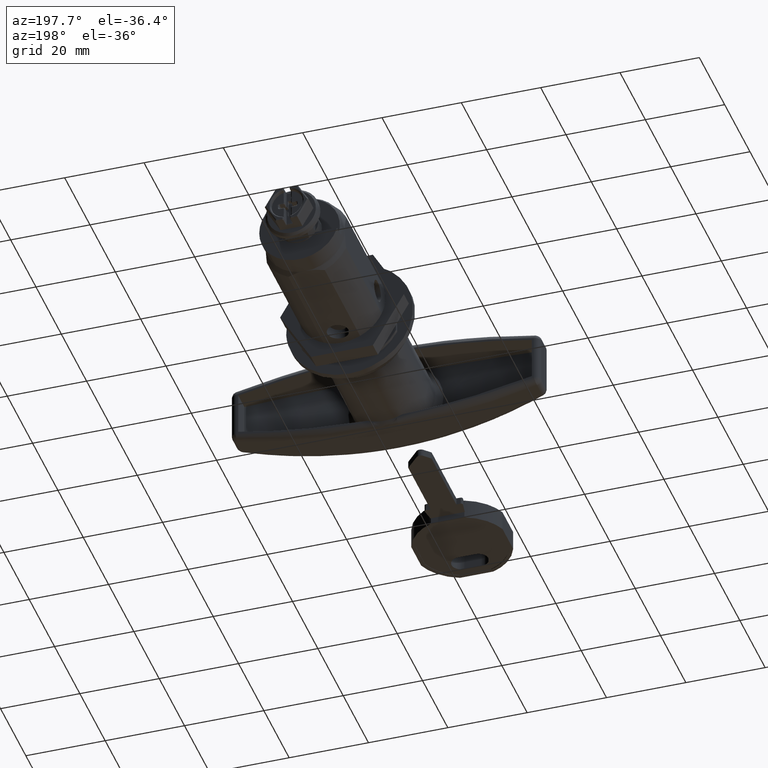
[diagram: clean part render]
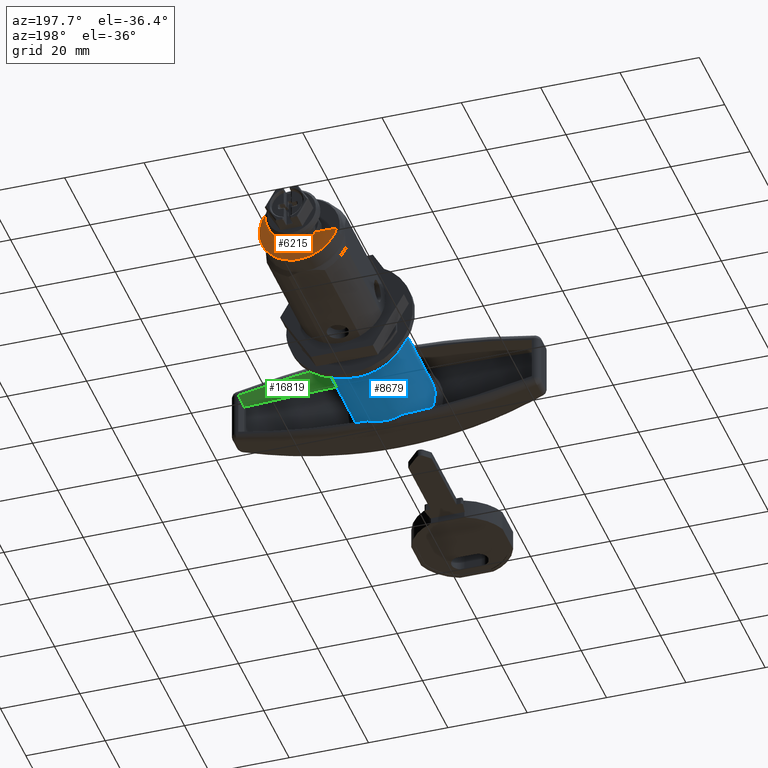
[diagram: same view with three faces highlighted in distinct colors, each labeled with its STEP entity id]
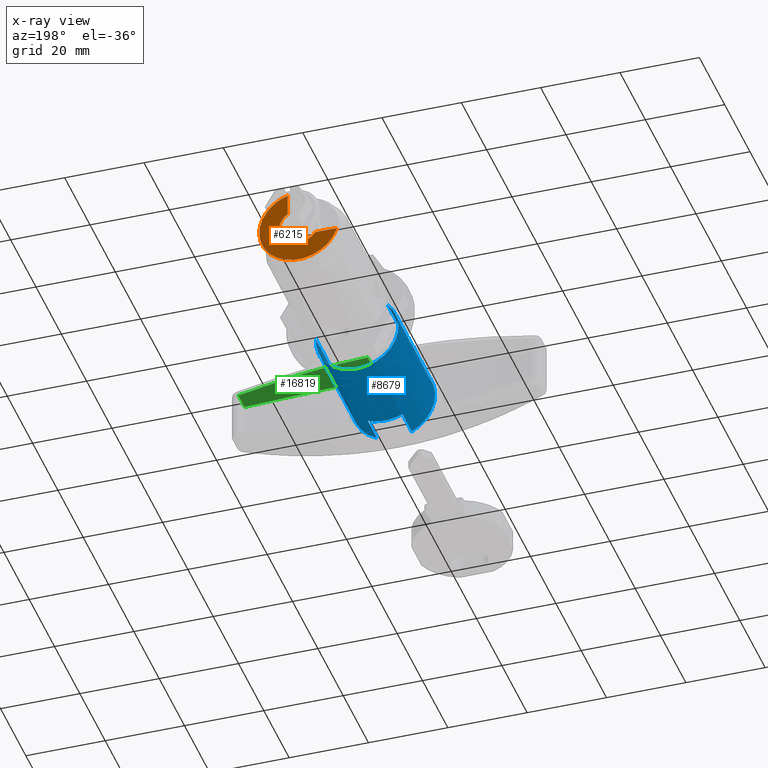
[diagram: x-ray of the same camera — body ghosted, the three highlighted faces saturated]
A machine part, auxiliary view with three faces highlighted in distinct colors.
The next image is the same camera in x-ray (body ghosted, the three faces saturated) — at least one of them is partly hidden behind the body in this view.
Their STEP definitions:

[orange] entity #6215 — the highlighted face is a freeform B-spline surface patch.
#3933=CARTESIAN_POINT('',(40.000001350386299,-2.800000132992865,9.600000455975540));
#3934=VERTEX_POINT('',#3933);
#3935=CARTESIAN_POINT('',(40.000001350386299,-5.754307693944071,8.178505515245842));
#3936=VERTEX_POINT('',#3935);
#3937=CARTESIAN_POINT('',(40.000001350386299,-2.800000132992862,9.600000455975540));
#3938=CARTESIAN_POINT('',(40.000001350386299,-4.395260948412258,9.134716051478216));
#3939=CARTESIAN_POINT('',(40.000001350386299,-5.754307693944071,8.178505515245842));
#3947=(BOUNDED_CURVE()B_SPLINE_CURVE(2,(#3937,#3938,#3939),.UNSPECIFIED.,.F.,.U.)B_SPLINE_CURVE_WITH_KNOTS((3,3),(0.0,0.082030175945618),.UNSPECIFIED.)CURVE()GEOMETRIC_REPRESENTATION_ITEM()RATIONAL_B_SPLINE_CURVE((1.0,0.943580413835011,0.914929479149381))REPRESENTATION_ITEM(''));
#3948=EDGE_CURVE('',#3934,#3936,#3947,.T.);
#3974=CARTESIAN_POINT('',(40.000001350386299,9.600000455975531,-2.800000132992895));
#3975=VERTEX_POINT('',#3974);
#3981=CARTESIAN_POINT('',(40.000001350386299,-7.459388683341343,-6.660144891091237));
#3982=VERTEX_POINT('',#3981);
#3983=CARTESIAN_POINT('',(40.000001350386292,-7.459388683341381,-6.660144891091271));
#3984=CARTESIAN_POINT('',(40.000001350386292,-4.847983324913307,-9.584929245907864));
#3985=CARTESIAN_POINT('',(40.000001350386299,-0.944570143682854,-9.955289887449466));
#3986=CARTESIAN_POINT('',(40.000001350386306,7.285290321272336,-10.736149166260899));
#3987=CARTESIAN_POINT('',(40.000001350386299,9.600000455975531,-2.800000132992896));
#3995=(BOUNDED_CURVE()B_SPLINE_CURVE(2,(#3983,#3984,#3985,#3986,#3987),.UNSPECIFIED.,.F.,.U.)B_SPLINE_CURVE_WITH_KNOTS((3,2,3),(0.486900953988101,0.666666666666667,1.0),.UNSPECIFIED.)CURVE()GEOMETRIC_REPRESENTATION_ITEM()RATIONAL_B_SPLINE_CURVE((0.886076316151020,0.876358827723316,1.0,0.770736457591769,1.0))REPRESENTATION_ITEM(''));
#3996=EDGE_CURVE('',#3982,#3975,#3995,.T.);
#4091=CARTESIAN_POINT('',(40.000001350386313,-5.754307693944071,8.178505515245842));
#4092=CARTESIAN_POINT('',(40.000001350386299,-10.503832575528801,4.836791369797548));
#4093=CARTESIAN_POINT('',(40.000001350386299,-9.955289887449467,-0.944570143682831));
#4094=CARTESIAN_POINT('',(40.000001350386299,-9.645277776778372,-4.211940440098975));
#4095=CARTESIAN_POINT('',(40.000001350386292,-7.459388683341381,-6.660144891091271));
#4103=(BOUNDED_CURVE()B_SPLINE_CURVE(2,(#4091,#4092,#4093,#4094,#4095),.UNSPECIFIED.,.F.,.U.)B_SPLINE_CURVE_WITH_KNOTS((3,2,3),(0.082030175945618,0.333333333333333,0.486900953988101),.UNSPECIFIED.)CURVE()GEOMETRIC_REPRESENTATION_ITEM()RATIONAL_B_SPLINE_CURVE((0.914929479149381,0.827156043756757,1.0,0.894377629868453,0.886076316151020))REPRESENTATION_ITEM(''));
#4104=EDGE_CURVE('',#3936,#3982,#4103,.T.);
#5001=CARTESIAN_POINT('',(40.000001350386299,-4.795479394035308,-1.415407143327581));
#5002=VERTEX_POINT('',#5001);
#5003=CARTESIAN_POINT('',(40.000001350385958,2.230677515242269,-4.474827127718969));
#5004=VERTEX_POINT('',#5003);
#5005=CARTESIAN_POINT('',(40.000001350386306,-4.795479394035308,-1.415407143327581));
#5006=CARTESIAN_POINT('',(40.000001350386285,-3.941586080944233,-4.308445945972665));
#5007=CARTESIAN_POINT('',(40.000001350386299,-0.984174489404091,-4.902183245698410));
#5008=CARTESIAN_POINT('',(40.000001350386292,0.696509759304420,-5.239601591651436));
#5009=CARTESIAN_POINT('',(40.000001350385958,2.230677515242269,-4.474827127718969));
#5017=(BOUNDED_CURVE()B_SPLINE_CURVE(2,(#5005,#5006,#5007,#5008,#5009),.UNSPECIFIED.,.F.,.U.)B_SPLINE_CURVE_WITH_KNOTS((3,2,3),(0.359729588893338,0.666666666666667,0.853543996178263),.UNSPECIFIED.)CURVE()GEOMETRIC_REPRESENTATION_ITEM()RATIONAL_B_SPLINE_CURVE((0.975566185982518,0.845724241948269,1.0,0.906069863301507,0.917460205244255))REPRESENTATION_ITEM(''));
#5018=EDGE_CURVE('',#5002,#5004,#5017,.T.);
#5087=CARTESIAN_POINT('',(40.000001350386299,4.142462945548190,-2.800000132992895));
#5088=VERTEX_POINT('',#5087);
#5089=CARTESIAN_POINT('',(40.000001350385958,2.230677515242269,-4.474827127718969));
#5090=CARTESIAN_POINT('',(40.000001350386292,3.406637988161878,-3.888617088565766));
#5091=CARTESIAN_POINT('',(40.000001350386299,4.142462945548187,-2.800000132992897));
#5099=(BOUNDED_CURVE()B_SPLINE_CURVE(2,(#5089,#5090,#5091),.UNSPECIFIED.,.F.,.U.)B_SPLINE_CURVE_WITH_KNOTS((3,3),(0.853543996178263,1.0),.UNSPECIFIED.)CURVE()GEOMETRIC_REPRESENTATION_ITEM()RATIONAL_B_SPLINE_CURVE((0.917460205244255,0.926386830894664,1.0))REPRESENTATION_ITEM(''));
#5100=EDGE_CURVE('',#5004,#5088,#5099,.T.);
#5126=CARTESIAN_POINT('',(40.000001350386299,-2.800000132992865,4.142462945548211));
#5127=VERTEX_POINT('',#5126);
#5133=CARTESIAN_POINT('',(40.000001350386299,-2.800000132992863,4.142462945548210));
#5134=CARTESIAN_POINT('',(40.000001350386285,-5.557257986435263,2.278759526153438));
#5135=CARTESIAN_POINT('',(40.000001350386299,-4.902183245698418,-0.984174489404049));
#5136=CARTESIAN_POINT('',(40.000001350386299,-4.858419279792680,-1.202163253325713));
#5137=CARTESIAN_POINT('',(40.000001350386299,-4.795479394035308,-1.415407143327581));
#5145=(BOUNDED_CURVE()B_SPLINE_CURVE(2,(#5133,#5134,#5135,#5136,#5137),.UNSPECIFIED.,.F.,.U.)B_SPLINE_CURVE_WITH_KNOTS((3,2,3),(0.0,0.333333333333333,0.359729588893338),.UNSPECIFIED.)CURVE()GEOMETRIC_REPRESENTATION_ITEM()RATIONAL_B_SPLINE_CURVE((1.0,0.832456694196171,1.0,0.986732452247902,0.975566185982518))REPRESENTATION_ITEM(''));
#5146=EDGE_CURVE('',#5127,#5002,#5145,.T.);
#6192=CARTESIAN_POINT('',(40.000001350386299,-10.979000070834170,-10.978533431406291));
#6193=CARTESIAN_POINT('',(40.000001350386299,10.579020018858699,-10.978533431406291));
#6194=CARTESIAN_POINT('',(40.000001350386299,-10.979000070834170,10.578997819097360));
#6195=CARTESIAN_POINT('',(40.000001350386299,10.579020018858699,10.578997819097360));
#6196=B_SPLINE_SURFACE_WITH_KNOTS('',1,1,((#6192,#6194),(#6193,#6195)),.UNSPECIFIED.,.F.,.F.,.U.,(2,2),(2,2),(0.0,21.558020089692860),(0.0,21.557531250503661),.UNSPECIFIED.);
#6197=ORIENTED_EDGE('',*,*,#3948,.T.);
#6198=ORIENTED_EDGE('',*,*,#4104,.T.);
#6199=ORIENTED_EDGE('',*,*,#3996,.T.);
#6200=CARTESIAN_POINT('',(40.000001350386299,4.142462945548190,-2.800000132992895));
#6201=CARTESIAN_POINT('',(40.000001350386299,9.600000455975531,-2.800000132992895));
#6202=QUASI_UNIFORM_CURVE('',1,(#6200,#6201),.UNSPECIFIED.,.F.,.U.);
#6203=EDGE_CURVE('',#5088,#3975,#6202,.T.);
#6204=ORIENTED_EDGE('',*,*,#6203,.F.);
#6205=ORIENTED_EDGE('',*,*,#5100,.F.);
#6206=ORIENTED_EDGE('',*,*,#5018,.F.);
#6207=ORIENTED_EDGE('',*,*,#5146,.F.);
#6208=CARTESIAN_POINT('',(40.000001350386299,-2.800000132992865,9.600000455975540));
#6209=CARTESIAN_POINT('',(40.000001350386299,-2.800000132992865,4.142462945548211));
#6210=QUASI_UNIFORM_CURVE('',1,(#6208,#6209),.UNSPECIFIED.,.F.,.U.);
#6211=EDGE_CURVE('',#3934,#5127,#6210,.T.);
#6212=ORIENTED_EDGE('',*,*,#6211,.F.);
#6213=EDGE_LOOP('',(#6197,#6198,#6199,#6204,#6205,#6206,#6207,#6212));
#6214=FACE_OUTER_BOUND('',#6213,.T.);
#6215=ADVANCED_FACE('',(#6214),#6196,.T.);

[blue] entity #8679 — the highlighted face is a freeform B-spline surface patch.
#8454=CARTESIAN_POINT('',(-4.964502213879515,7.620510130271885,7.077335095489270));
#8455=CARTESIAN_POINT('',(-4.964502213879516,10.690341663982792,3.771870579359414));
#8456=CARTESIAN_POINT('',(-4.964502213879515,10.374473956017400,-0.728150409905427));
#8457=CARTESIAN_POINT('',(-4.964502213879516,9.646263728187046,-11.102624365922823));
#8458=CARTESIAN_POINT('',(-4.964502213879515,-0.728210227830348,-10.374414138092471));
#8459=CARTESIAN_POINT('',(-4.964502213879516,-11.102684183847744,-9.646203910262125));
#8460=CARTESIAN_POINT('',(-4.964502213879515,-10.374473956017400,0.728270045755269));
#8461=CARTESIAN_POINT('',(-35.873884104739005,7.620510130271885,7.077335095489270));
#8462=CARTESIAN_POINT('',(-35.873884104739005,10.690341663982792,3.771870579359414));
#8463=CARTESIAN_POINT('',(-35.873884104738998,10.374473956017400,-0.728150409905427));
#8464=CARTESIAN_POINT('',(-35.873884104739005,9.646263728187046,-11.102624365922823));
#8465=CARTESIAN_POINT('',(-35.873884104738998,-0.728210227830348,-10.374414138092471));
#8466=CARTESIAN_POINT('',(-35.873884104739005,-11.102684183847744,-9.646203910262125));
#8467=CARTESIAN_POINT('',(-35.873884104738998,-10.374473956017400,0.728270045755269));
#8475=(BOUNDED_SURFACE()B_SPLINE_SURFACE(2,1,((#8454,#8461),(#8455,#8462),(#8456,#8463),(#8457,#8464),(#8458,#8465),(#8459,#8466),(#8460,#8467)),.UNSPECIFIED.,.F.,.F.,.U.)B_SPLINE_SURFACE_WITH_KNOTS((3,2,2,3),(2,2),(0.0,8.960267781254787,26.191551975975539,43.422836170696293),(0.0,30.909381890859489),.UNSPECIFIED.)GEOMETRIC_REPRESENTATION_ITEM()RATIONAL_B_SPLINE_SURFACE(((0.853787705168324,0.853787705168324),(0.847695526217005,0.847695526217005),(1.0,1.0),(0.707106781186548,0.707106781186548),(1.0,1.0),(0.707106781186548,0.707106781186548),(1.0,1.0)))REPRESENTATION_ITEM('')SURFACE());
#8476=CARTESIAN_POINT('',(-35.119996741547247,4.355676426082066,-9.443884425412870));
#8477=VERTEX_POINT('',#8476);
#8478=CARTESIAN_POINT('',(-34.967141554458408,7.620512398210590,7.077334314096355));
#8479=VERTEX_POINT('',#8478);
#8480=CARTESIAN_POINT('',(-35.119996741547247,4.355676426082066,-9.443884425412870));
#8481=CARTESIAN_POINT('',(-35.112302371480261,4.581716226958906,-9.339631776877651));
#8482=CARTESIAN_POINT('',(-35.104127705387029,4.804152619941596,-9.227147322800761));
#8483=CARTESIAN_POINT('',(-35.087118768702382,5.237567014152962,-8.988217317620523));
#8484=CARTESIAN_POINT('',(-35.078270804263731,5.448993212929455,-8.861592070175355));
#8485=CARTESIAN_POINT('',(-35.050915517639233,6.067757498585454,-8.460668471235401));
#8486=CARTESIAN_POINT('',(-35.031596121186809,6.459658009394113,-8.165426670107188));
#8487=CARTESIAN_POINT('',(-35.001851780911480,7.016478243389820,-7.680410274747853));
#8488=CARTESIAN_POINT('',(-34.991809434941743,7.196894147083551,-7.511686571564137));
#8489=CARTESIAN_POINT('',(-34.976665504316962,7.459535310277309,-7.247749339087534));
#8490=CARTESIAN_POINT('',(-34.971599839229349,7.545817278282658,-7.157874094579046));
#8491=CARTESIAN_POINT('',(-34.961541695328052,7.714339958780356,-6.975922920990938));
#8492=CARTESIAN_POINT('',(-34.956539527988248,7.796751872031948,-6.883681510332417));
#8493=CARTESIAN_POINT('',(-34.931708734972631,8.199693005335750,-6.416231280521919));
#8494=CARTESIAN_POINT('',(-34.912421695165172,8.493005339034269,-6.022387509963947));
#8495=CARTESIAN_POINT('',(-34.885202313559184,8.890165946882098,-5.402273083820528));
#8496=CARTESIAN_POINT('',(-34.876414061802642,9.015390937681238,-5.190658208732399));
#8497=CARTESIAN_POINT('',(-34.863765308885803,9.192333020749430,-4.865761647087547));
#8498=CARTESIAN_POINT('',(-34.859638019567129,9.249496085966822,-4.756215901943533));
#8499=CARTESIAN_POINT('',(-34.851579535071266,9.360139866635514,-4.534597605948540));
#8500=CARTESIAN_POINT('',(-34.847643849353318,9.413681094374024,-4.422391343728680));
#8501=CARTESIAN_POINT('',(-34.828551880470172,9.671355397137198,-3.856413469731844));
#8502=CARTESIAN_POINT('',(-34.815366610417023,9.842758628506029,-3.394229827971617));
#8503=CARTESIAN_POINT('',(-34.793796542727002,10.118776107756410,-2.451769734802412));
#8504=CARTESIAN_POINT('',(-34.785409689279369,10.223384157575451,-1.971491656599952));
#8505=CARTESIAN_POINT('',(-34.778308052398572,10.311481860791011,-1.359580444485512));
#8506=CARTESIAN_POINT('',(-34.777056884117997,10.326958105592020,-1.236617278172645));
#8507=CARTESIAN_POINT('',(-34.774902854708579,10.353558923525810,-0.989511357007342));
#8508=CARTESIAN_POINT('',(-34.774000839896203,10.364673038094249,-0.865350132190825));
#8509=CARTESIAN_POINT('',(-34.771844675845507,10.391214413908950,-0.494121828152374));
#8510=CARTESIAN_POINT('',(-34.771130516006593,10.399971496886460,-0.247298116916402));
#8511=CARTESIAN_POINT('',(-34.771123694037271,10.400055270417250,0.491233657469138));
#8512=CARTESIAN_POINT('',(-34.773966786259770,10.365322797716720,0.981011801457766));
#8513=CARTESIAN_POINT('',(-34.782368980352963,10.261111571788581,1.711820395742545));
#8514=CARTESIAN_POINT('',(-34.785859309598337,10.217656952241590,1.954777793236323));
#8515=CARTESIAN_POINT('',(-34.792111937900962,10.139105540142211,2.318224220177596));
#8516=CARTESIAN_POINT('',(-34.794369070104182,10.110648096681940,2.439374680514361));
#8517=CARTESIAN_POINT('',(-34.799203016128423,10.049403349856309,2.680536223993761));
#8518=CARTESIAN_POINT('',(-34.801775185755069,10.016675066597770,2.800343209008384));
#8519=CARTESIAN_POINT('',(-34.815380173322517,9.842600475522003,3.395545299156935));
#8520=CARTESIAN_POINT('',(-34.828645264898931,9.670114298164904,3.859500239593222));
#8521=CARTESIAN_POINT('',(-34.847701647696397,9.412896416889874,4.424171282055503));
#8522=CARTESIAN_POINT('',(-34.851640742452354,9.359306179700113,4.536449878235643));
#8523=CARTESIAN_POINT('',(-34.859735456637587,9.248151917726103,4.758960179119401));
#8524=CARTESIAN_POINT('',(-34.863879548292573,9.190746794793391,4.868884685171184));
#8525=CARTESIAN_POINT('',(-34.876573717741920,9.013134080353218,5.194730448133698));
#8526=CARTESIAN_POINT('',(-34.885385546105347,8.887536122555771,5.406729019691037));
#8527=CARTESIAN_POINT('',(-34.912648984308177,8.489601048599207,6.027349185318107));
#8528=CARTESIAN_POINT('',(-34.931929174131973,8.196227702694126,6.420671350232881));
#8529=CARTESIAN_POINT('',(-34.956843064657200,7.791797503439606,6.889467633569869));
#8530=CARTESIAN_POINT('',(-34.961979699938581,7.707107441778677,6.984092537276788));
#8531=CARTESIAN_POINT('',(-34.967141554458408,7.620512398210590,7.077334314096355));
#8532=B_SPLINE_CURVE_WITH_KNOTS('',3,(#8480,#8481,#8482,#8483,#8484,#8485,#8486,#8487,#8488,#8489,#8490,#8491,#8492,#8493,#8494,#8495,#8496,#8497,#8498,#8499,#8500,#8501,#8502,#8503,#8504,#8505,#8506,#8507,#8508,#8509,#8510,#8511,#8512,#8513,#8514,#8515,#8516,#8517,#8518,#8519,#8520,#8521,#8522,#8523,#8524,#8525,#8526,#8527,#8528,#8529,#8530,#8531),.UNSPECIFIED.,.F.,.U.,(4,2,2,2,2,2,2,2,2,2,2,2,2,2,2,2,2,2,2,2,2,2,2,2,2,4),(0.0,0.031250000000000,0.062500000000000,0.125000000000000,0.156250000000000,0.171875000000000,0.187500000000000,0.250000000000000,0.281250000000000,0.296874999999999,0.312499999999999,0.374999999999999,0.437499999999999,0.453124999999999,0.468749999999999,0.499999999999999,0.562499999999999,0.593749999999999,0.609374999999999,0.624999999999999,0.687499999999999,0.703124999999999,0.718749999999999,0.749999999999999,0.812499999999999,0.828592481241945),.UNSPECIFIED.);
#8533=EDGE_CURVE('',#8477,#8479,#8532,.T.);
#8534=ORIENTED_EDGE('',*,*,#8533,.T.);
#8535=CARTESIAN_POINT('',(-5.700002080408000,7.620511944012234,7.077333142529513));
#8536=VERTEX_POINT('',#8535);
#8537=CARTESIAN_POINT('',(-5.700002080408000,7.620511944012234,7.077333142529513));
#8538=CARTESIAN_POINT('',(-34.967141554458408,7.620512398210590,7.077334314096355));
#8539=QUASI_UNIFORM_CURVE('',1,(#8537,#8538),.UNSPECIFIED.,.F.,.U.);
#8540=EDGE_CURVE('',#8536,#8479,#8539,.T.);
#8541=ORIENTED_EDGE('',*,*,#8540,.F.);
#8542=CARTESIAN_POINT('',(-5.700002080408000,0.0,-10.399940182075079));
#8543=VERTEX_POINT('',#8542);
#8544=CARTESIAN_POINT('',(-5.700002080408000,7.620511944012234,7.077333142529513));
#8545=CARTESIAN_POINT('',(-5.700002080408001,10.400000000000000,4.084496642170961));
#8546=CARTESIAN_POINT('',(-5.700002080408000,10.400000000000000,0.000059817924921));
#8547=CARTESIAN_POINT('',(-5.700002080407999,10.400000000000000,-10.399940182075079));
#8548=CARTESIAN_POINT('',(-5.700002080408000,0.0,-10.399940182075079));
#8556=(BOUNDED_CURVE()B_SPLINE_CURVE(2,(#8544,#8545,#8546,#8547,#8548),.UNSPECIFIED.,.F.,.U.)B_SPLINE_CURVE_WITH_KNOTS((3,2,3),(0.130575017007077,0.250000000000000,0.500000000000000),.UNSPECIFIED.)CURVE()GEOMETRIC_REPRESENTATION_ITEM()RATIONAL_B_SPLINE_CURVE((0.853844698108157,0.860084929297844,1.0,0.707106781186548,1.0))REPRESENTATION_ITEM(''));
#8557=EDGE_CURVE('',#8536,#8543,#8556,.T.);
#8558=ORIENTED_EDGE('',*,*,#8557,.T.);
#8559=CARTESIAN_POINT('',(-5.700002080408000,-10.374473956011929,0.728270045833199));
#8560=VERTEX_POINT('',#8559);
#8561=CARTESIAN_POINT('',(-5.700002080408000,0.0,-10.399940182075079));
#8562=CARTESIAN_POINT('',(-5.700002080407999,-10.400000000000000,-10.399940182075079));
#8563=CARTESIAN_POINT('',(-5.700002080408000,-10.400000000000000,0.000059817924921));
#8564=CARTESIAN_POINT('',(-5.700002080407999,-10.400000000000007,0.364612315720743));
#8565=CARTESIAN_POINT('',(-5.700002080408000,-10.374473956011924,0.728270045833199));
#8573=(BOUNDED_CURVE()B_SPLINE_CURVE(2,(#8561,#8562,#8563,#8564,#8565),.UNSPECIFIED.,.F.,.U.)B_SPLINE_CURVE_WITH_KNOTS((3,2,3),(0.500000000000000,0.750000000000000,0.762215784287834),.UNSPECIFIED.)CURVE()GEOMETRIC_REPRESENTATION_ITEM()RATIONAL_B_SPLINE_CURVE((1.0,0.707106781186548,1.0,0.985688318478422,0.972775264270955))REPRESENTATION_ITEM(''));
#8574=EDGE_CURVE('',#8543,#8560,#8573,.T.);
#8575=ORIENTED_EDGE('',*,*,#8574,.T.);
#8576=CARTESIAN_POINT('',(-34.773207020145513,-10.374474258814910,0.728265813043037));
#8577=VERTEX_POINT('',#8576);
#8578=CARTESIAN_POINT('',(-5.700002080408000,-10.374473956011929,0.728270045833199));
#8579=CARTESIAN_POINT('',(-34.773207020145513,-10.374474258814910,0.728265813043037));
#8580=QUASI_UNIFORM_CURVE('',1,(#8578,#8579),.UNSPECIFIED.,.F.,.U.);
#8581=EDGE_CURVE('',#8560,#8577,#8580,.T.);
#8582=ORIENTED_EDGE('',*,*,#8581,.T.);
#8583=CARTESIAN_POINT('',(-35.119996741547297,-4.355676426082095,-9.443884425412850));
#8584=VERTEX_POINT('',#8583);
#8585=CARTESIAN_POINT('',(-34.773207020145513,-10.374474258814910,0.728265813043037));
#8586=CARTESIAN_POINT('',(-34.771821345356429,-10.391529575022080,0.485290951671562));
#8587=CARTESIAN_POINT('',(-34.771132763714043,-10.399972498664580,0.242953865162199));
#8588=CARTESIAN_POINT('',(-34.771125849383871,-10.400055801448490,-0.491114535014885));
#8589=CARTESIAN_POINT('',(-34.773968848857777,-10.365323352141610,-0.980892700184830));
#8590=CARTESIAN_POINT('',(-34.782370899114618,-10.261112160630651,-1.711701325575499));
#8591=CARTESIAN_POINT('',(-34.785861179626082,-10.217657552443420,-1.954658733326483));
#8592=CARTESIAN_POINT('',(-34.792113733618777,-10.139106157210970,-2.318105175482712));
#8593=CARTESIAN_POINT('',(-34.794370840815510,-10.110648719351859,-2.439255640869538));
#8594=CARTESIAN_POINT('',(-34.799204736584258,-10.049403983633001,-2.680417194357764));
#8595=CARTESIAN_POINT('',(-34.801776881005232,-10.016675705870719,-2.800224184322749));
#8596=CARTESIAN_POINT('',(-34.815381742158031,-9.842601141993281,-3.395426298955382));
#8597=CARTESIAN_POINT('',(-34.828646731372821,-9.670114985493679,-3.859381258126268));
#8598=CARTESIAN_POINT('',(-34.847702984678563,-9.412897129162881,-4.424052322939832));
#8599=CARTESIAN_POINT('',(-34.851642053432649,-9.359306896910193,-4.536330923540998));
#8600=CARTESIAN_POINT('',(-34.859736715574307,-9.248152644674162,-4.758841233139073));
#8601=CARTESIAN_POINT('',(-34.863880781260043,-9.190747526528973,-4.868765743472169));
#8602=CARTESIAN_POINT('',(-34.876574872956432,-9.013134826210814,-5.194611519054749));
#8603=CARTESIAN_POINT('',(-34.885386649690943,-8.887536877507671,-5.406610098727248));
#8604=CARTESIAN_POINT('',(-34.912649933613316,-8.489601829892477,-6.027230287823401));
#8605=CARTESIAN_POINT('',(-34.931930021388951,-8.196228500297583,-6.420552467220005));
#8606=CARTESIAN_POINT('',(-34.961648707767431,-7.713799026048998,-6.979761852618045));
#8607=CARTESIAN_POINT('',(-34.971688065798453,-7.545901545819801,-7.161017082673712));
#8608=CARTESIAN_POINT('',(-34.986836027286387,-7.283144237521714,-7.424980462984200));
#8609=CARTESIAN_POINT('',(-34.991902120377432,-7.193693606903507,-7.511673649661513));
#8610=CARTESIAN_POINT('',(-35.001962272662162,-7.012599561689710,-7.681008778572703));
#8611=CARTESIAN_POINT('',(-35.006966600166258,-6.920780706310654,-7.763832177334746));
#8612=CARTESIAN_POINT('',(-35.031813974566738,-6.455414432334390,-8.168857854715203));
#8613=CARTESIAN_POINT('',(-35.051132626391407,-6.063145994427183,-8.463924126749987));
#8614=CARTESIAN_POINT('',(-35.087527615674617,-5.239317741423242,-8.997179378510056));
#8615=CARTESIAN_POINT('',(-35.104607839286892,-4.807763230495281,-9.235375800006446));
#8616=CARTESIAN_POINT('',(-35.119996741547297,-4.355676426082095,-9.443884425412850));
#8617=B_SPLINE_CURVE_WITH_KNOTS('',3,(#8585,#8586,#8587,#8588,#8589,#8590,#8591,#8592,#8593,#8594,#8595,#8596,#8597,#8598,#8599,#8600,#8601,#8602,#8603,#8604,#8605,#8606,#8607,#8608,#8609,#8610,#8611,#8612,#8613,#8614,#8615,#8616),.UNSPECIFIED.,.F.,.U.,(4,2,2,2,2,2,2,2,2,2,2,2,2,2,2,4),(0.469316589508179,0.499999999999999,0.562499999999999,0.593749999999999,0.609374999999999,0.624999999999999,0.687500000000000,0.703125000000000,0.718750000000000,0.750000000000000,0.812500000000000,0.843750000000000,0.859375000000000,0.875000000000000,0.937500000000000,1.0),.UNSPECIFIED.);
#8618=EDGE_CURVE('',#8577,#8584,#8617,.T.);
#8619=ORIENTED_EDGE('',*,*,#8618,.T.);
#8620=CARTESIAN_POINT('',(-27.700002080408002,-4.355676426082045,-9.443884425412749));
#8621=VERTEX_POINT('',#8620);
#8622=CARTESIAN_POINT('',(-35.119996741547297,-4.355676426082095,-9.443884425412850));
#8623=CARTESIAN_POINT('',(-27.700002080408002,-4.355676426082045,-9.443884425412749));
#8624=QUASI_UNIFORM_CURVE('',1,(#8622,#8623),.UNSPECIFIED.,.F.,.U.);
#8625=EDGE_CURVE('',#8584,#8621,#8624,.T.);
#8626=ORIENTED_EDGE('',*,*,#8625,.T.);
#8627=CARTESIAN_POINT('',(-27.700002080408002,-2.956395875626015,-9.970884140727211));
#8628=VERTEX_POINT('',#8627);
#8629=CARTESIAN_POINT('',(-27.700002080408002,-2.956395875626015,-9.970884140727213));
#8630=CARTESIAN_POINT('',(-27.700002080408005,-3.675027258195580,-9.757809143582080));
#8631=CARTESIAN_POINT('',(-27.700002080408002,-4.355676426082045,-9.443884425412749));
#8639=(BOUNDED_CURVE()B_SPLINE_CURVE(2,(#8629,#8630,#8631),.UNSPECIFIED.,.F.,.U.)CURVE()GEOMETRIC_REPRESENTATION_ITEM()QUASI_UNIFORM_CURVE()RATIONAL_B_SPLINE_CURVE((1.0,0.997412848359685,1.0))REPRESENTATION_ITEM(''));
#8640=EDGE_CURVE('',#8628,#8621,#8639,.T.);
#8641=ORIENTED_EDGE('',*,*,#8640,.F.);
#8642=CARTESIAN_POINT('',(-27.700002080408002,2.956395875625975,-9.970884140727231));
#8643=VERTEX_POINT('',#8642);
#8644=CARTESIAN_POINT('',(-27.700002080408002,2.956395875625973,-9.970884140727225));
#8645=CARTESIAN_POINT('',(-27.700002080407994,-2.081668E-014,-10.847458776956536));
#8646=CARTESIAN_POINT('',(-27.700002080408002,-2.956395875626013,-9.970884140727215));
#8654=(BOUNDED_CURVE()B_SPLINE_CURVE(2,(#8644,#8645,#8646),.UNSPECIFIED.,.F.,.U.)CURVE()GEOMETRIC_REPRESENTATION_ITEM()QUASI_UNIFORM_CURVE()RATIONAL_B_SPLINE_CURVE((1.0,0.958744611408860,1.0))REPRESENTATION_ITEM(''));
#8655=EDGE_CURVE('',#8643,#8628,#8654,.T.);
#8656=ORIENTED_EDGE('',*,*,#8655,.F.);
#8657=CARTESIAN_POINT('',(-27.700002080408002,4.355676426082066,-9.443884425412749));
#8658=VERTEX_POINT('',#8657);
#8659=CARTESIAN_POINT('',(-27.700002080408002,4.355676426082066,-9.443884425412749));
#8660=CARTESIAN_POINT('',(-27.700002080408002,3.675027258195563,-9.757809143582090));
#8661=CARTESIAN_POINT('',(-27.700002080408002,2.956395875625973,-9.970884140727225));
#8669=(BOUNDED_CURVE()B_SPLINE_CURVE(2,(#8659,#8660,#8661),.UNSPECIFIED.,.F.,.U.)CURVE()GEOMETRIC_REPRESENTATION_ITEM()QUASI_UNIFORM_CURVE()RATIONAL_B_SPLINE_CURVE((1.0,0.997412848359685,1.0))REPRESENTATION_ITEM(''));
#8670=EDGE_CURVE('',#8658,#8643,#8669,.T.);
#8671=ORIENTED_EDGE('',*,*,#8670,.F.);
#8672=CARTESIAN_POINT('',(-27.700002080408002,4.355676426082066,-9.443884425412749));
#8673=CARTESIAN_POINT('',(-35.119996741547247,4.355676426082066,-9.443884425412870));
#8674=QUASI_UNIFORM_CURVE('',1,(#8672,#8673),.UNSPECIFIED.,.F.,.U.);
#8675=EDGE_CURVE('',#8658,#8477,#8674,.T.);
#8676=ORIENTED_EDGE('',*,*,#8675,.T.);
#8677=EDGE_LOOP('',(#8534,#8541,#8558,#8575,#8582,#8619,#8626,#8641,#8656,#8671,#8676));
#8678=FACE_OUTER_BOUND('',#8677,.T.);
#8679=ADVANCED_FACE('',(#8678),#8475,.T.);

[green] entity #16819 — the highlighted face is a freeform B-spline surface patch.
#8752=CARTESIAN_POINT('',(-27.700002080408002,-4.355676426082045,9.444004061262580));
#8753=VERTEX_POINT('',#8752);
#8767=CARTESIAN_POINT('',(-35.119996741547247,-4.355676426082095,9.444004061262701));
#8768=VERTEX_POINT('',#8767);
#8769=CARTESIAN_POINT('',(-27.700002080408002,-4.355676426082045,9.444004061262580));
#8770=CARTESIAN_POINT('',(-35.119996741547247,-4.355676426082095,9.444004061262701));
#8771=QUASI_UNIFORM_CURVE('',1,(#8769,#8770),.UNSPECIFIED.,.F.,.U.);
#8772=EDGE_CURVE('',#8753,#8768,#8771,.T.);
#12989=CARTESIAN_POINT('',(-36.530158068279299,-7.444765618155731,9.336245392833389));
#12990=VERTEX_POINT('',#12989);
#12991=CARTESIAN_POINT('',(-36.530158068279299,-7.444765618155740,9.336245392833400));
#12992=CARTESIAN_POINT('',(-36.536880639939852,-7.292213101118514,9.342962190417868));
#12993=CARTESIAN_POINT('',(-36.535547998973932,-7.140602627313280,9.349430766838337));
#12994=CARTESIAN_POINT('',(-36.518700480489493,-6.839038872263532,9.361895619899245));
#12995=CARTESIAN_POINT('',(-36.503175680946342,-6.689086758893330,9.367891780633984));
#12996=CARTESIAN_POINT('',(-36.458598339610496,-6.390763018119389,9.379427809726613));
#12997=CARTESIAN_POINT('',(-36.429554631825013,-6.242390345872751,9.384967654041182));
#12998=CARTESIAN_POINT('',(-36.375436262824472,-6.021065102415172,9.392942941583724));
#12999=CARTESIAN_POINT('',(-36.355581617948523,-5.947346540094419,9.395550752998913));
#13000=CARTESIAN_POINT('',(-36.312354548105318,-5.801173888643560,9.400627112190456));
#13001=CARTESIAN_POINT('',(-36.289007082415502,-5.728768569020093,9.403094201118188));
#13002=CARTESIAN_POINT('',(-36.213437693536832,-5.513723910819113,9.410285967161277));
#13003=CARTESIAN_POINT('',(-36.155836765797332,-5.373197597690373,9.414802538098835));
#13004=CARTESIAN_POINT('',(-36.055406970575682,-5.167922866555539,9.421156479833339));
#13005=CARTESIAN_POINT('',(-36.019454128427199,-5.100259492732587,9.423208900908179));
#13006=CARTESIAN_POINT('',(-35.942513589142933,-4.968689711054847,9.427124280110007));
#13007=CARTESIAN_POINT('',(-35.901497305394933,-4.904657587187876,9.428991245697153));
#13008=CARTESIAN_POINT('',(-35.812905219755983,-4.781110200346940,9.432527852555772));
#13009=CARTESIAN_POINT('',(-35.765307593949572,-4.721501577806547,9.434199959867573));
#13010=CARTESIAN_POINT('',(-35.661013839318542,-4.608995287777971,9.437302289418266));
#13011=CARTESIAN_POINT('',(-35.605216292429361,-4.556996119760070,9.438707674838955));
#13012=CARTESIAN_POINT('',(-35.513433155837014,-4.488421776265814,9.440536141571283));
#13013=CARTESIAN_POINT('',(-35.481247628865667,-4.467038222205609,9.441101586954838));
#13014=CARTESIAN_POINT('',(-35.414762885080279,-4.429126252134464,9.442098300815124));
#13015=CARTESIAN_POINT('',(-35.380468280827948,-4.412557154707801,9.442530731637151));
#13016=CARTESIAN_POINT('',(-35.309379877491942,-4.385088295954142,9.443244890955482));
#13017=CARTESIAN_POINT('',(-35.272243679819518,-4.374132267497554,9.443528092037749));
#13018=CARTESIAN_POINT('',(-35.196800058839010,-4.359445247024765,9.443907155377557));
#13019=CARTESIAN_POINT('',(-35.158633074171533,-4.355676426095592,9.444004061263058));
#13020=CARTESIAN_POINT('',(-35.119996741547247,-4.355676426082095,9.444004061262701));
#13021=B_SPLINE_CURVE_WITH_KNOTS('',3,(#12991,#12992,#12993,#12994,#12995,#12996,#12997,#12998,#12999,#13000,#13001,#13002,#13003,#13004,#13005,#13006,#13007,#13008,#13009,#13010,#13011,#13012,#13013,#13014,#13015,#13016,#13017,#13018,#13019,#13020),.UNSPECIFIED.,.F.,.U.,(4,2,2,2,2,2,2,2,2,2,2,2,2,2,4),(0.0,0.125000000000003,0.250000000000005,0.375000000000007,0.437500000000008,0.500000000000009,0.625000000000009,0.687500000000007,0.750000000000006,0.812500000000004,0.875000000000003,0.906250000000002,0.937500000000001,0.968750000000001,1.0),.UNSPECIFIED.);
#13022=EDGE_CURVE('',#12990,#8768,#13021,.T.);
#16469=CARTESIAN_POINT('',(-32.596689993963302,-37.000001852400800,5.406236238740561));
#16470=VERTEX_POINT('',#16469);
#16476=CARTESIAN_POINT('',(-27.700002080408002,-37.000001852400800,5.406236238740580));
#16477=VERTEX_POINT('',#16476);
#16478=CARTESIAN_POINT('',(-32.596689993963302,-37.000001852400800,5.406236238740561));
#16479=CARTESIAN_POINT('',(-27.700002080408002,-37.000001852400800,5.406236238740580));
#16480=QUASI_UNIFORM_CURVE('',1,(#16478,#16479),.UNSPECIFIED.,.F.,.U.);
#16481=EDGE_CURVE('',#16470,#16477,#16480,.T.);
#16715=CARTESIAN_POINT('',(-27.700002080408002,-37.000001852400800,5.406236238740580));
#16716=CARTESIAN_POINT('',(-27.700002080408005,-20.874953171307649,9.018736943163130));
#16717=CARTESIAN_POINT('',(-27.700002080408002,-4.355676426082045,9.444004061262580));
#16725=(BOUNDED_CURVE()B_SPLINE_CURVE(2,(#16715,#16716,#16717),.UNSPECIFIED.,.F.,.U.)CURVE()GEOMETRIC_REPRESENTATION_ITEM()QUASI_UNIFORM_CURVE()RATIONAL_B_SPLINE_CURVE((1.0,0.995267496934888,1.0))REPRESENTATION_ITEM(''));
#16726=EDGE_CURVE('',#16477,#8753,#16725,.T.);
#16747=CARTESIAN_POINT('',(-32.596689993963302,-37.000001852400800,5.406236238740561));
#16748=CARTESIAN_POINT('',(-33.271618687580151,-33.990045028217281,6.080557301442542));
#16749=CARTESIAN_POINT('',(-33.863807621137852,-30.963610061440018,6.672220402262571));
#16750=CARTESIAN_POINT('',(-34.882614806608217,-24.877764708264930,7.690129777368188));
#16751=CARTESIAN_POINT('',(-35.309234317262018,-21.818354574096020,8.116377324642027));
#16752=CARTESIAN_POINT('',(-35.995313051357932,-15.666241614978260,8.801860617374770));
#16753=CARTESIAN_POINT('',(-36.254775914257401,-12.573539515568619,9.061100005907171));
#16754=CARTESIAN_POINT('',(-36.466759895543959,-8.791633636250261,9.272901695710861));
#16755=CARTESIAN_POINT('',(-36.500461070399368,-8.118598380881590,9.306573906395119));
#16756=CARTESIAN_POINT('',(-36.530158068279299,-7.444765618155731,9.336245392833389));
#16757=B_SPLINE_CURVE_WITH_KNOTS('',3,(#16747,#16748,#16749,#16750,#16751,#16752,#16753,#16754,#16755,#16756),.UNSPECIFIED.,.F.,.U.,(4,2,2,2,4),(0.0,0.125000000000000,0.250000000000000,0.375000000000000,0.402022326159115),.UNSPECIFIED.);
#16758=EDGE_CURVE('',#16470,#12990,#16757,.T.);
#16798=CARTESIAN_POINT('',(-36.755279983962332,-38.439834308230992,5.077065767715823));
#16799=CARTESIAN_POINT('',(-27.473620132819139,-38.439834308230992,5.077065767715823));
#16800=CARTESIAN_POINT('',(-36.755279983962325,-20.810957031726296,9.188352546534835));
#16801=CARTESIAN_POINT('',(-27.473620132819143,-20.810957031726296,9.188352546534835));
#16802=CARTESIAN_POINT('',(-36.755279983962325,-2.711346553147819,9.478341393712737));
#16803=CARTESIAN_POINT('',(-27.473620132819143,-2.711346553147819,9.478341393712737));
#16811=(BOUNDED_SURFACE()B_SPLINE_SURFACE(1,2,((#16798,#16800,#16802),(#16799,#16801,#16803)),.UNSPECIFIED.,.F.,.F.,.U.)B_SPLINE_SURFACE_WITH_KNOTS((2,2),(3,3),(0.0,9.281659851143193),(0.0,36.106287130796908),.UNSPECIFIED.)GEOMETRIC_REPRESENTATION_ITEM()RATIONAL_B_SPLINE_SURFACE(((1.0,0.993038676590997,0.997406222466796),(1.0,0.993038676590997,0.997406222466796)))REPRESENTATION_ITEM('')SURFACE());
#16812=ORIENTED_EDGE('',*,*,#16758,.T.);
#16813=ORIENTED_EDGE('',*,*,#13022,.T.);
#16814=ORIENTED_EDGE('',*,*,#8772,.F.);
#16815=ORIENTED_EDGE('',*,*,#16726,.F.);
#16816=ORIENTED_EDGE('',*,*,#16481,.F.);
#16817=EDGE_LOOP('',(#16812,#16813,#16814,#16815,#16816));
#16818=FACE_OUTER_BOUND('',#16817,.T.);
#16819=ADVANCED_FACE('',(#16818),#16811,.F.);